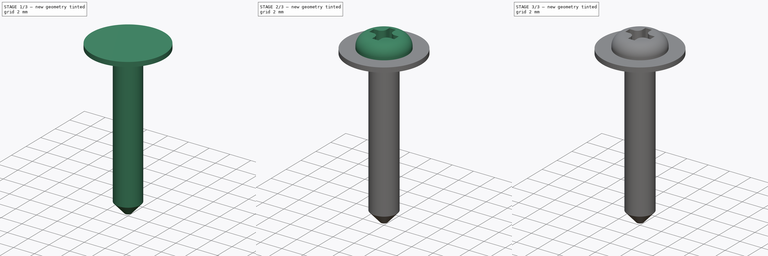
[diagram: build sequence overview — one tinted view per stage of 3, left to right]
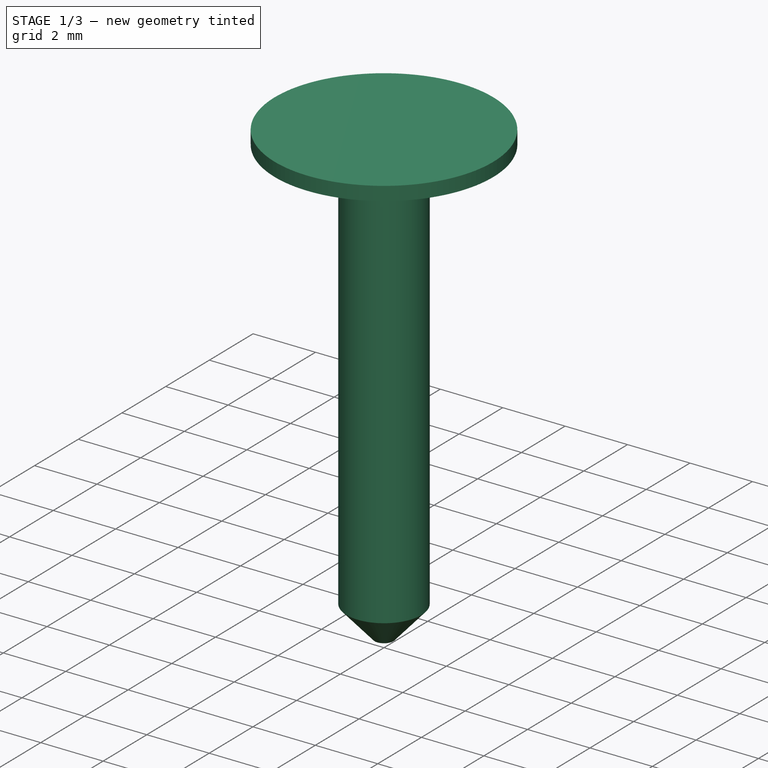
[diagram: stage 1 of 3 — iso view after this stage's code; geometry added in this stage tinted green]
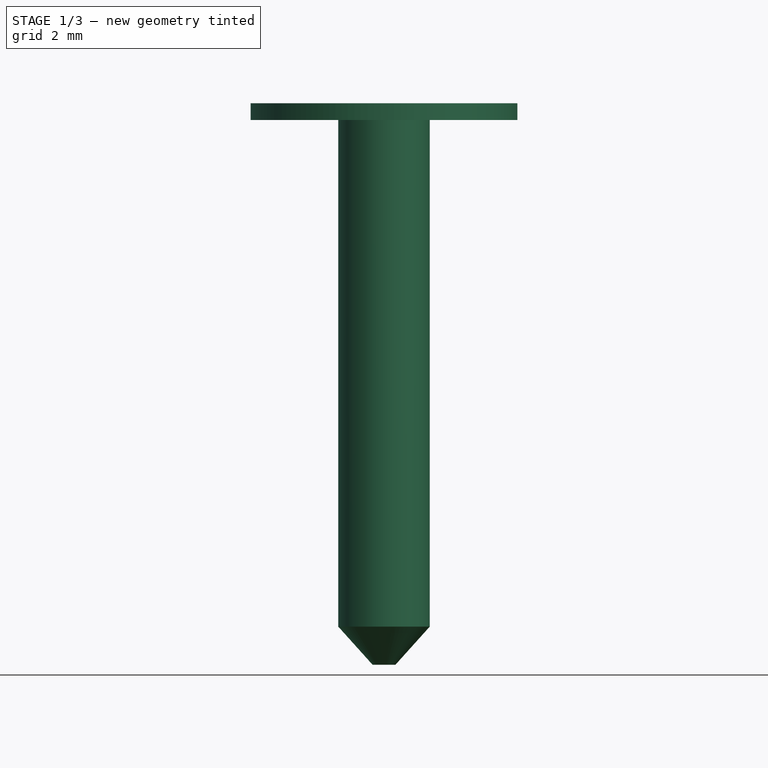
[diagram: stage 1 of 3 — front view after this stage's code; geometry added in this stage tinted green]
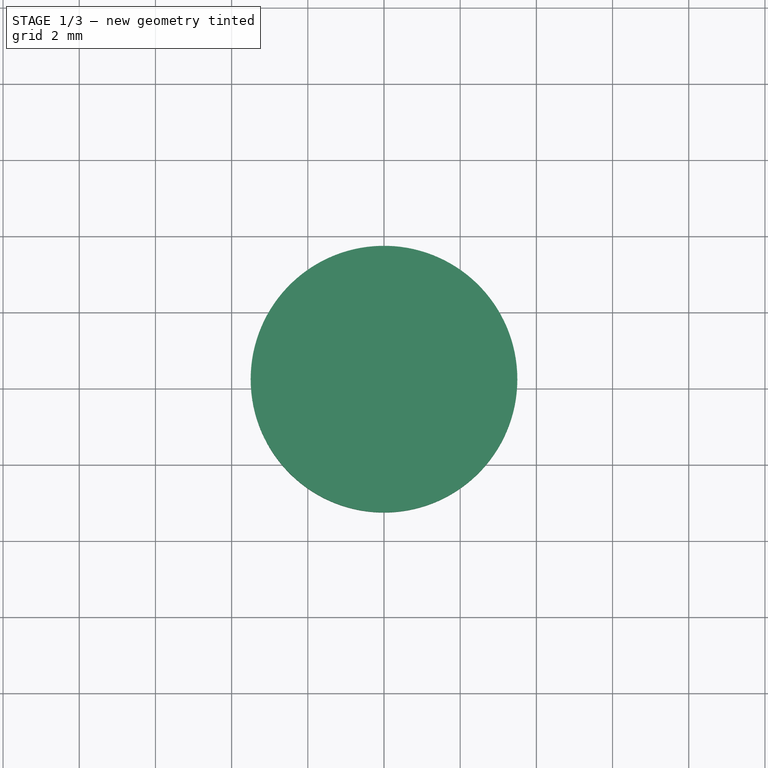
[diagram: stage 1 of 3 — top view after this stage's code; geometry added in this stage tinted green]
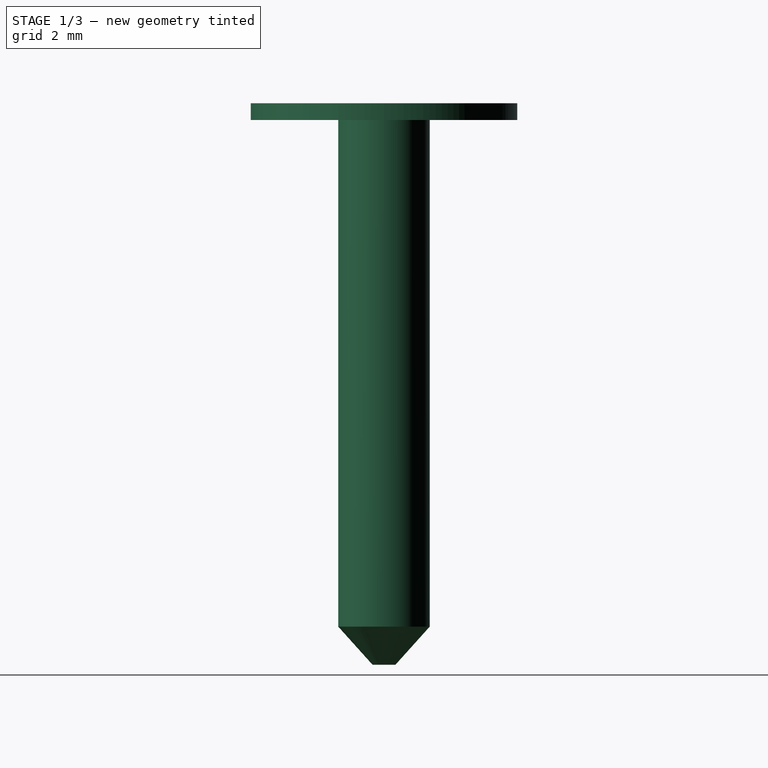
[diagram: stage 1 of 3 — right view after this stage's code; geometry added in this stage tinted green]
FCSTD DOCUMENT  (FreeCAD 0.14R3702 (Git))
Label: SM-S4303R-horn-screw
License: CC-BY 3.0
LicenseURL: http://creativecommons.org/licenses/by/3.0/
objects: Sketcher::SketchObject×4, PartDesign::Pad×2, PartDesign::Fillet×1, PartDesign::Pocket×1, PartDesign::Revolution×1, Part::MultiFuse×1, Part::Chamfer×1
note: 15 computed .brp shape members not serialized (recipe doc carries the construction recipe); baked Part::Feature solids carry a one-line shape summary decoded from their .brp

FEATURE [Sketcher::SketchObject] Sketch  label="head-base-sketch"
  sketch-geometry (1):
    g0: Circle CenterX=0 CenterY=0 CenterZ=0 NormalX=0 NormalY=0 NormalZ=1 Radius=3.5
  constraints (2):
    c: Coincident(g0,g-1)
    c: Radius(g0) = 3.5
FEATURE [PartDesign::Pad] Pad  label="head-base"
  Length = 0.44
  Length2 = 100
  Sketch = -> Sketch
  Type = 0
FEATURE [Sketcher::SketchObject] Sketch003
  Placement = pos=(0,0,0) rot=(-1,0,0;4.71239rad)
  sketch-geometry (5):
    g0: LineSegment StartX=0 StartY=0 StartZ=0 EndX=1.2 EndY=0 EndZ=0
    g1: LineSegment StartX=1.2 StartY=0 StartZ=0 EndX=1.2 EndY=-13.3 EndZ=0
    g2: LineSegment StartX=0 StartY=-14.3 StartZ=0 EndX=0 EndY=0 EndZ=0
    g3: LineSegment StartX=0 StartY=-14.3 StartZ=0 EndX=0.3 EndY=-14.3 EndZ=0
    g4: LineSegment StartX=0.3 StartY=-14.3 StartZ=0 EndX=1.2 EndY=-13.3 EndZ=0
  constraints (14):
    c: Coincident(g-1,g0)
    c: Horizontal(g0)
    c: Coincident(g0,g1)
    c: Vertical(g1)
    c: PointOnObject(g2,g-2)
    c: Coincident(g2,g0)
    c: DistanceX(g0) = 1.2
    c: DistanceY(g2) = 14.3
    c: DistanceY(g1) = -13.3
    c: Coincident(g3,g2)
    c: Horizontal(g3)
    c: Coincident(g4,g1)
    c: Coincident(g4,g3)
    c: DistanceX(g3) = 0.3
FEATURE [PartDesign::Revolution] Revolution  label="screw-body"
  Angle = 360
  Axis = (0,0,1)
  Base = (0,0,0)
  Placement = pos=(0,0,0) rot=(-1,0,0;4.71239rad)
  ReferenceAxis = -> Sketch003 [V_Axis]
  Reversed = true
  Sketch = -> Sketch003
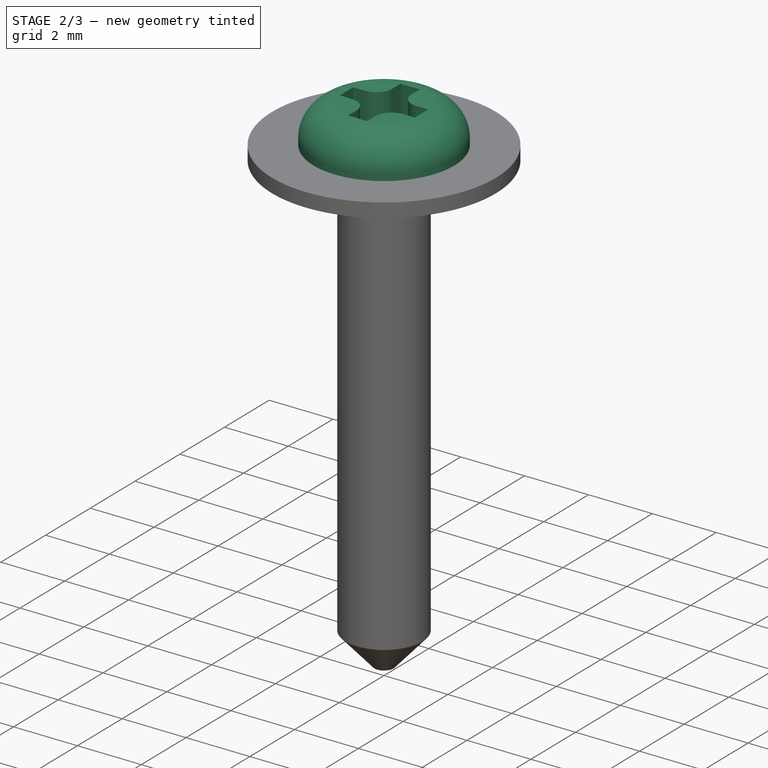
[diagram: stage 2 of 3 — iso view after this stage's code; geometry added in this stage tinted green]
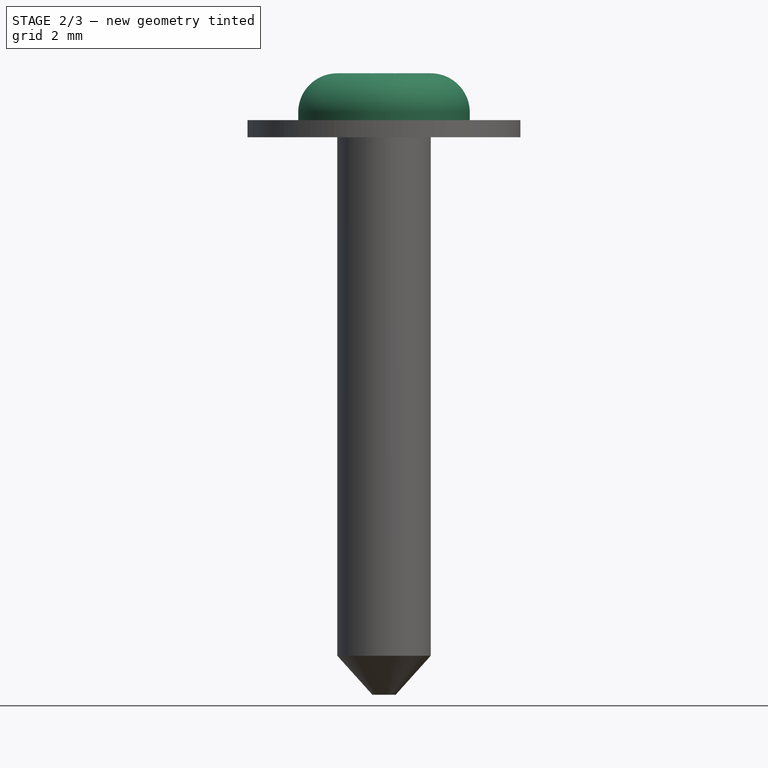
[diagram: stage 2 of 3 — front view after this stage's code; geometry added in this stage tinted green]
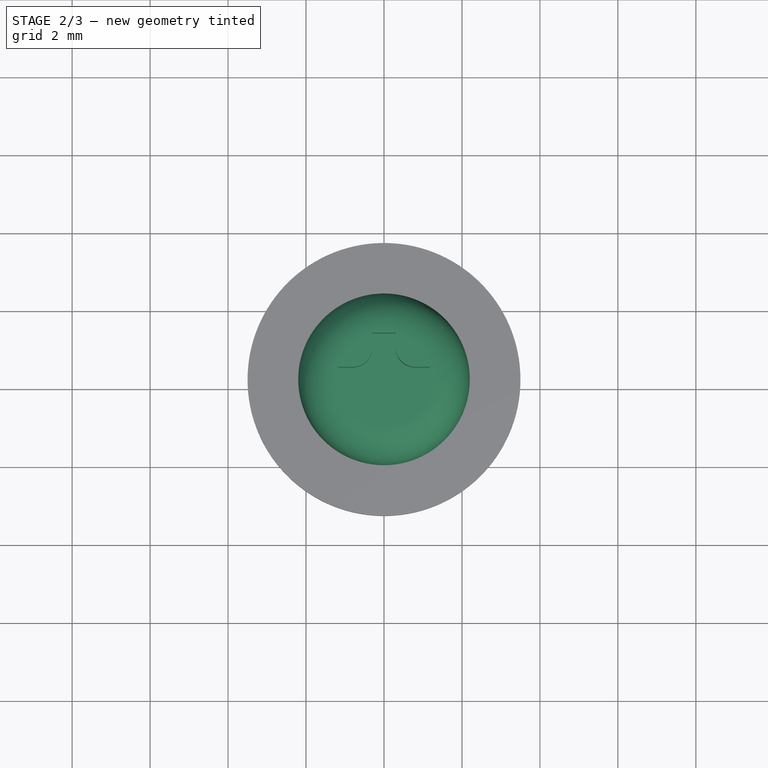
[diagram: stage 2 of 3 — top view after this stage's code; geometry added in this stage tinted green]
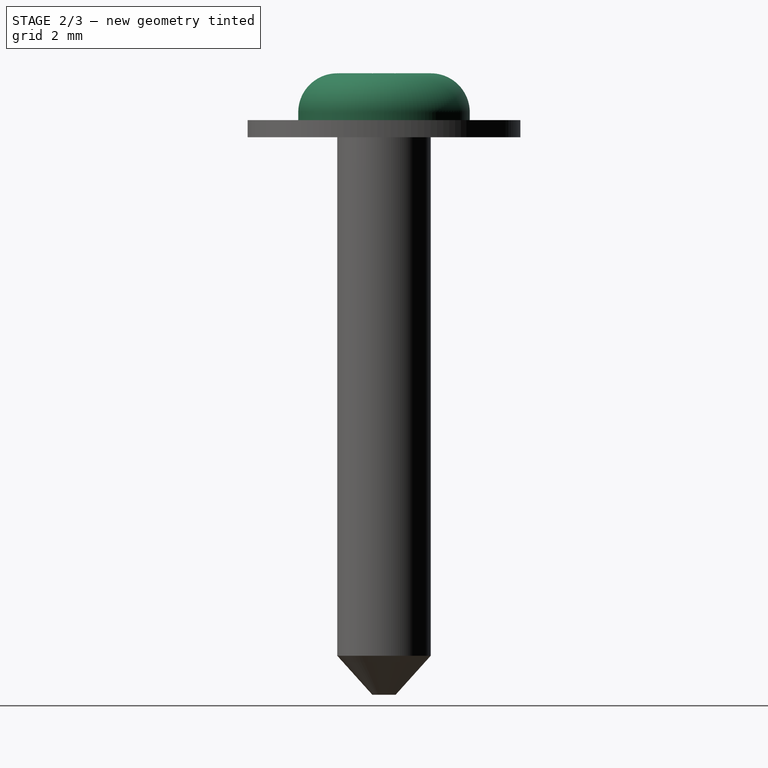
[diagram: stage 2 of 3 — right view after this stage's code; geometry added in this stage tinted green]
FEATURE [Sketcher::SketchObject] Sketch001  label="head-1-sketch"
  Placement = pos=(0,0,0.44) rot=(0,0,1;0rad)
  Support = -> Pad [Face3]
  sketch-geometry (1):
    g0: Circle CenterX=0 CenterY=0 CenterZ=0 NormalX=0 NormalY=0 NormalZ=1 Radius=2.2
  constraints (2):
    c: Coincident(g0,g-1)
    c: Radius(g0) = 2.2
FEATURE [PartDesign::Pad] Pad001  label="head-1"
  Length = 1.2
  Length2 = 100
  Sketch = -> Sketch001
  Type = 0
FEATURE [PartDesign::Fillet] Fillet  label="head-2"
  Base = -> Pad001 [Edge6]
  Radius = 1
FEATURE [Sketcher::SketchObject] Sketch002  label="cross-sketch"
  Placement = pos=(0,0,1.64) rot=(0,0,1;0rad)
  Support = -> Fillet [Face4]
  sketch-geometry (16):
    g0: LineSegment StartX=-0.3 StartY=1.175 StartZ=0 EndX=0.3 EndY=1.175 EndZ=0
    g1: LineSegment StartX=0.3 StartY=1.175 StartZ=0 EndX=0.3 EndY=0.8 EndZ=0
    g2: LineSegment StartX=0.3 StartY=-1.175 StartZ=0 EndX=-0.3 EndY=-1.175 EndZ=0
    g3: LineSegment StartX=-0.3 StartY=-1.175 StartZ=0 EndX=-0.3 EndY=-0.8 EndZ=0
    g4: LineSegment StartX=-1.175 StartY=0.3 StartZ=0 EndX=-0.8 EndY=0.3 EndZ=0
    g5: LineSegment StartX=1.175 StartY=0.3 StartZ=0 EndX=1.175 EndY=-0.3 EndZ=0
    g6: LineSegment StartX=1.175 StartY=-0.3 StartZ=0 EndX=0.8 EndY=-0.3 EndZ=0
    g7: LineSegment StartX=-1.175 StartY=-0.3 StartZ=0 EndX=-1.175 EndY=0.3 EndZ=0
    g8: LineSegment StartX=0.8 StartY=0.3 StartZ=0 EndX=1.175 EndY=0.3 EndZ=0
    g9: LineSegment StartX=-0.3 StartY=0.8 StartZ=0 EndX=-0.3 EndY=1.175 EndZ=0
    g10: LineSegment StartX=0.3 StartY=-0.8 StartZ=0 EndX=0.3 EndY=-1.175 EndZ=0
    g11: LineSegment StartX=-0.8 StartY=-0.3 StartZ=0 EndX=-1.175 EndY=-0.3 EndZ=0
    g12: ArcOfCircle CenterX=-0.8 CenterY=0.8 CenterZ=0 NormalX=0 NormalY=0 NormalZ=1 Radius=0.5 StartAngle=4.71239 EndAngle=6.28319
    g13: ArcOfCircle CenterX=0.8 CenterY=0.8 CenterZ=0 NormalX=0 NormalY=0 NormalZ=1 Radius=0.5 StartAngle=3.14159 EndAngle=4.71239
    g14: ArcOfCircle CenterX=0.8 CenterY=-0.8 CenterZ=0 NormalX=0 NormalY=0 NormalZ=1 Radius=0.5 StartAngle=1.5708 EndAngle=3.14159
    g15: ArcOfCircle CenterX=-0.8 CenterY=-0.8 CenterZ=0 NormalX=0 NormalY=0 NormalZ=1 Radius=0.5 StartAngle=0 EndAngle=1.5708
  constraints (38):
    c: Coincident(g0,g1)
    c: Coincident(g10,g2)
    c: Coincident(g2,g3)
    c: Coincident(g9,g0)
    c: Horizontal(g0)
    c: Horizontal(g2)
    c: Vertical(g1)
    c: Vertical(g3)
    c: Symmetric(g0,g10,g-1)
    c: Coincident(g8,g5)
    c: Coincident(g5,g6)
    c: Coincident(g11,g7)
    c: Coincident(g7,g4)
    c: Horizontal(g4)
    c: Horizontal(g6)
    c: Vertical(g5)
    c: Vertical(g7)
    c: Symmetric(g4,g5,g-1)
    c: Tangent(g4,g8)
    c: Tangent(g3,g9)
    c: Tangent(g1,g10)
    c: Tangent(g6,g11)
    c: Equal(g4,g9)
    c: Equal(g7,g0)
    c: DistanceX(g4,g5) = 2.35
    c: DistanceX(g0) = 0.6
    c: Tangent(g4,g12)
    c: Tangent(g9,g12)
    c: Tangent(g1,g13)
    c: Tangent(g8,g13)
    c: Tangent(g6,g14)
    c: Tangent(g10,g14)
    c: Tangent(g3,g15)
    c: Tangent(g11,g15)
    c: Symmetric(g12,g14,g-1)
    c: Symmetric(g15,g13,g-1)
    c: Equal(g12,g15)
    c: Radius(g12) = 0.5
FEATURE [PartDesign::Pocket] Pocket  label="head-3"
  Length = 1
  Sketch = -> Sketch002
  Type = 0
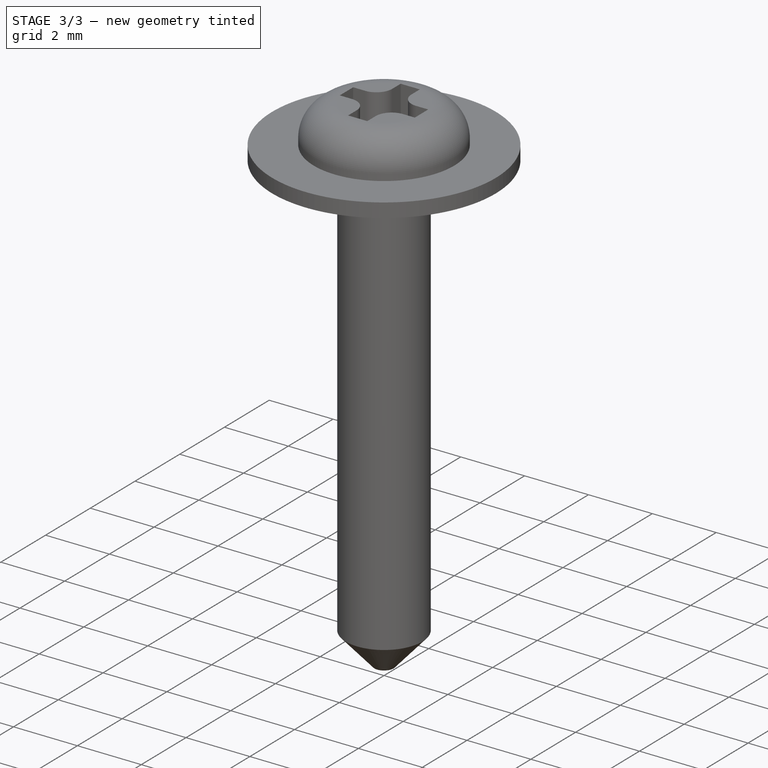
[diagram: stage 3 of 3 — iso view after this stage's code; geometry added in this stage tinted green]
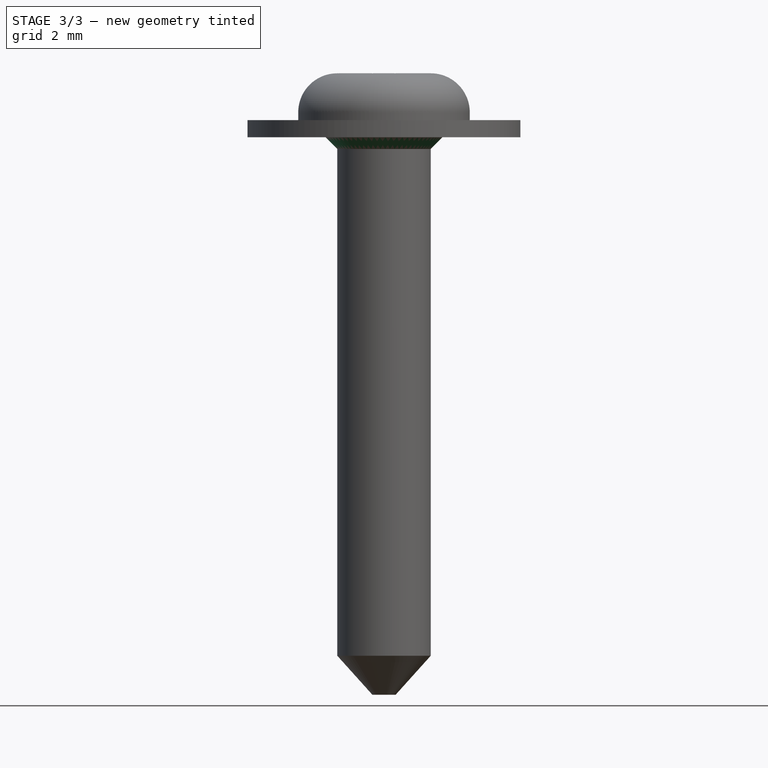
[diagram: stage 3 of 3 — front view after this stage's code; geometry added in this stage tinted green]
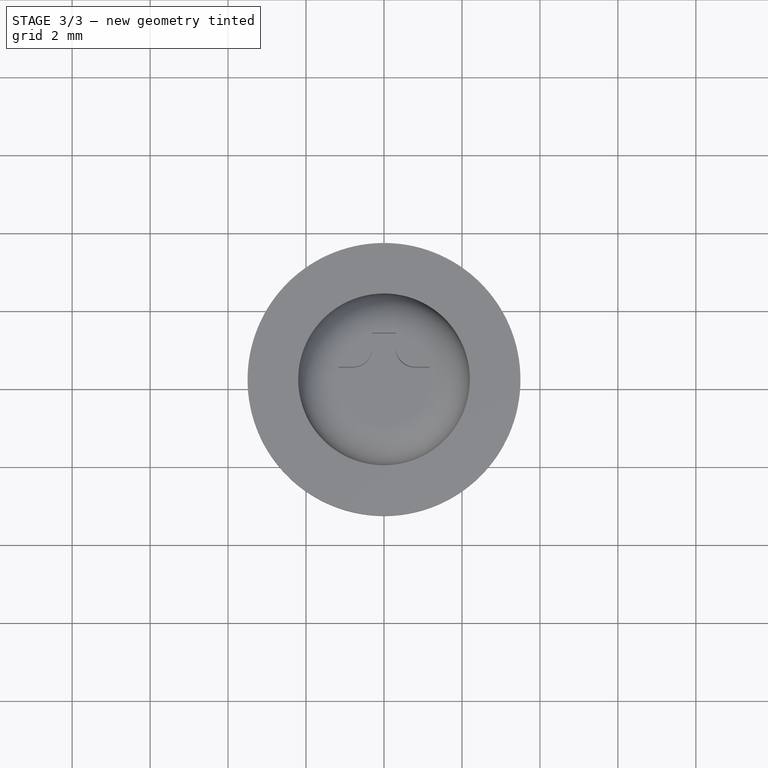
[diagram: stage 3 of 3 — top view after this stage's code; geometry added in this stage tinted green]
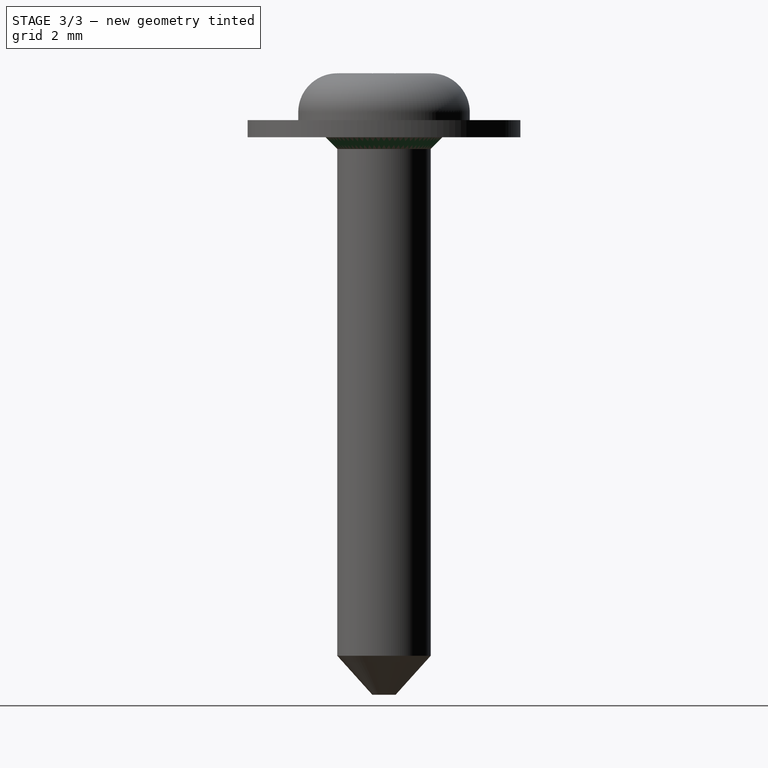
[diagram: stage 3 of 3 — right view after this stage's code; geometry added in this stage tinted green]
FEATURE [Part::MultiFuse] Fusion  label="final-screw-1"
  Shapes = -> [Pocket,Revolution]
FEATURE [Part::Chamfer] Chamfer  label="final-screw-2"
  Base = -> Fusion
  Edges = 1 edges r=0.3: [Edge81]
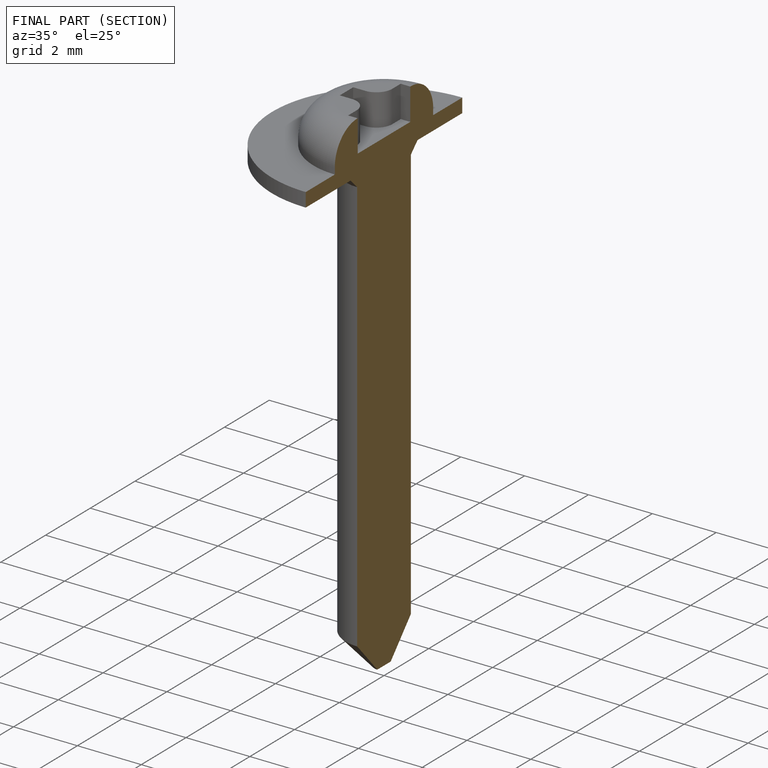
[diagram: finished part — half-section view (interior)]
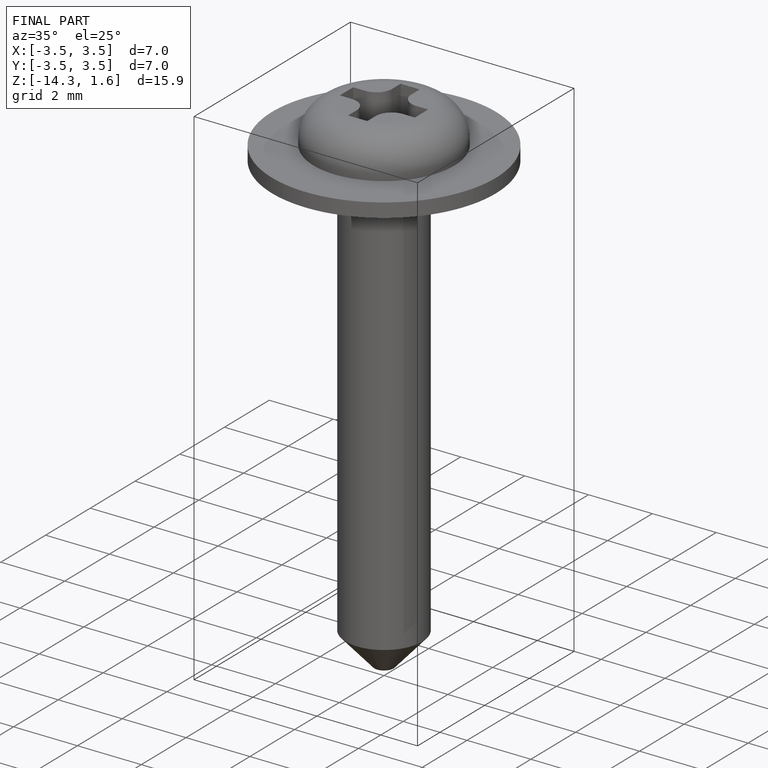
[diagram: finished part — iso view with bounding-box wireframe]
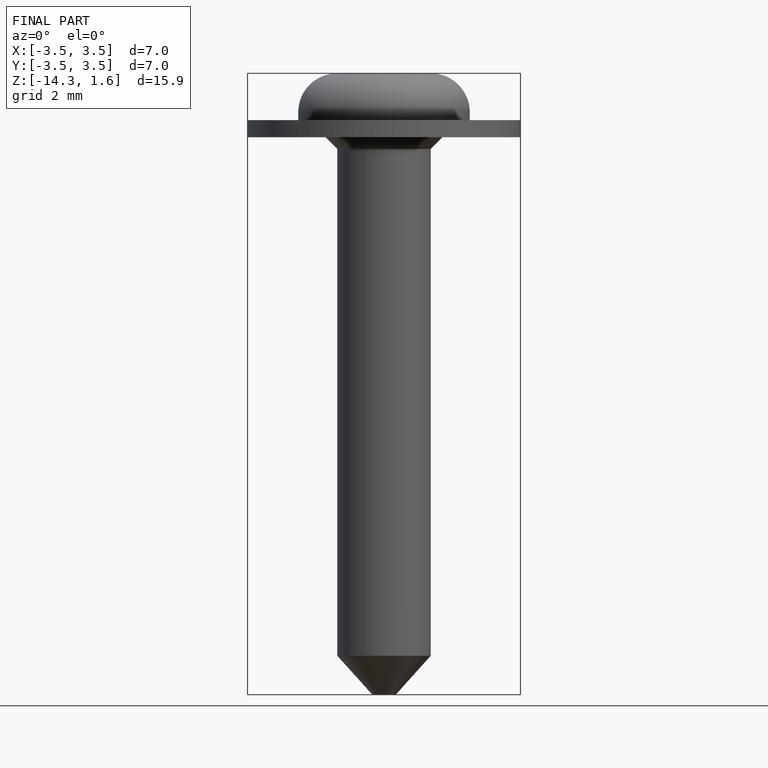
[diagram: finished part — front view with bounding-box wireframe]
